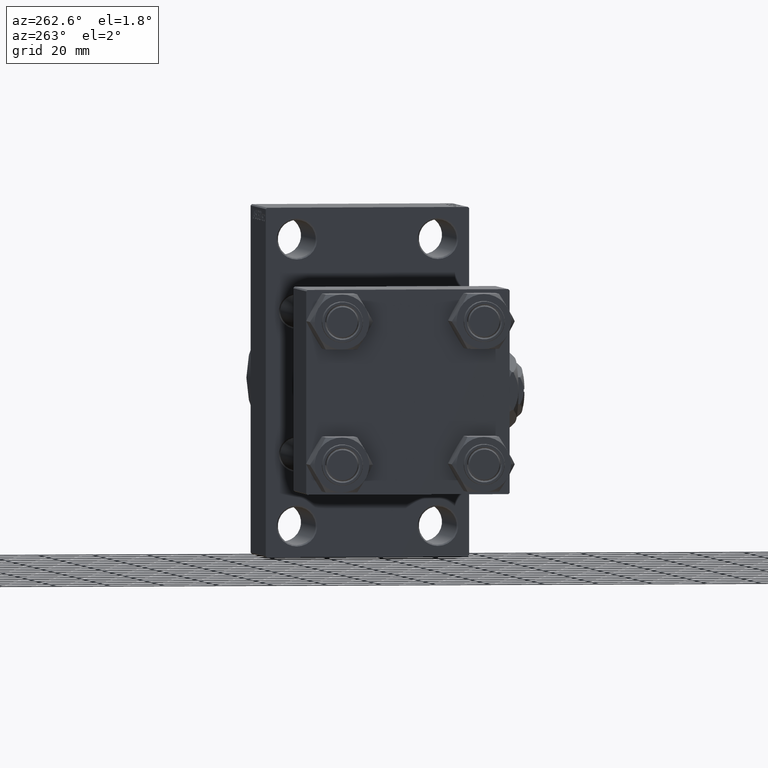
[diagram: clean part render]
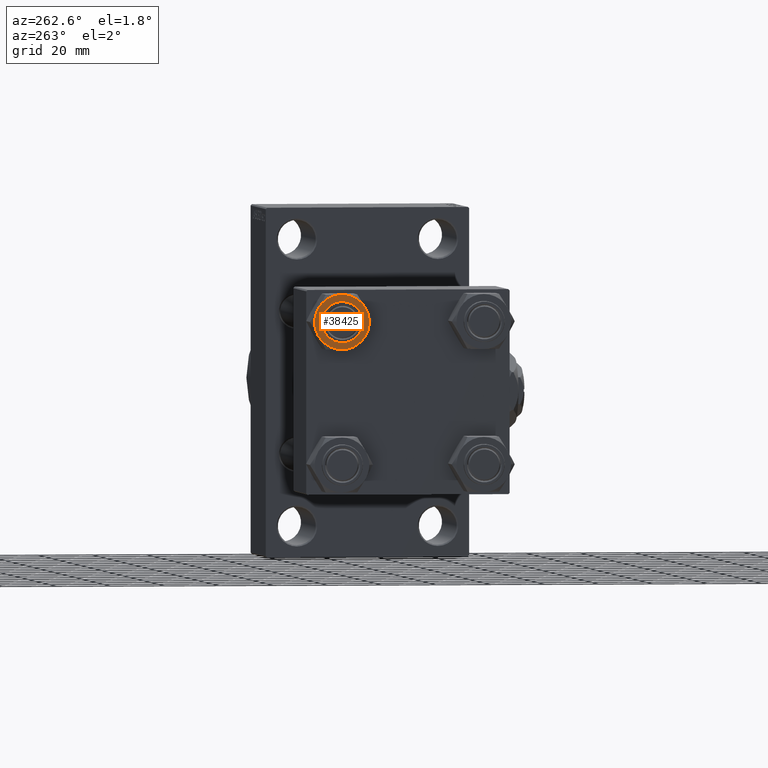
[diagram: same view with one face highlighted and labeled with its STEP entity id]
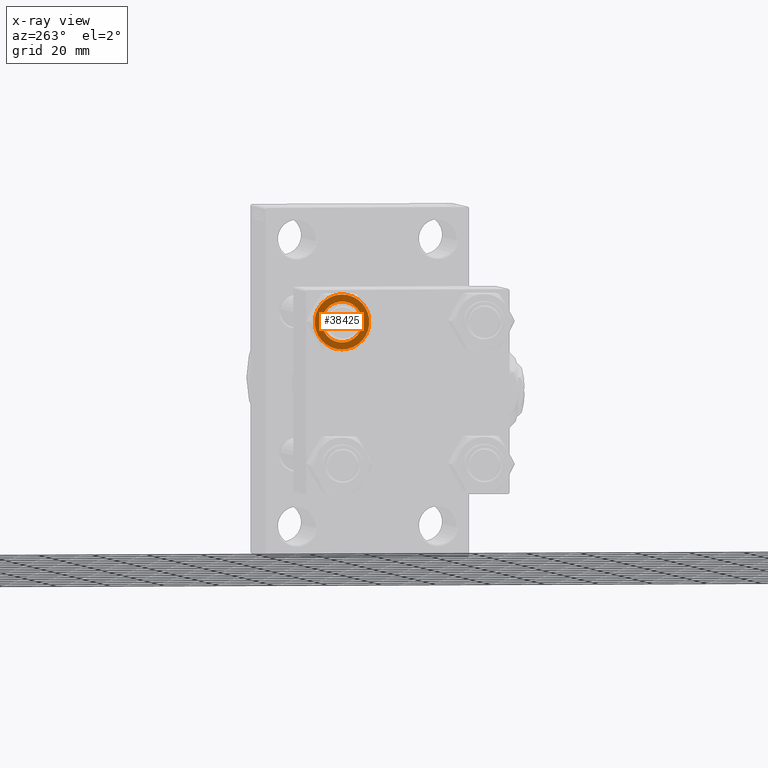
[diagram: x-ray of the same camera — body ghosted, the highlighted face saturated]
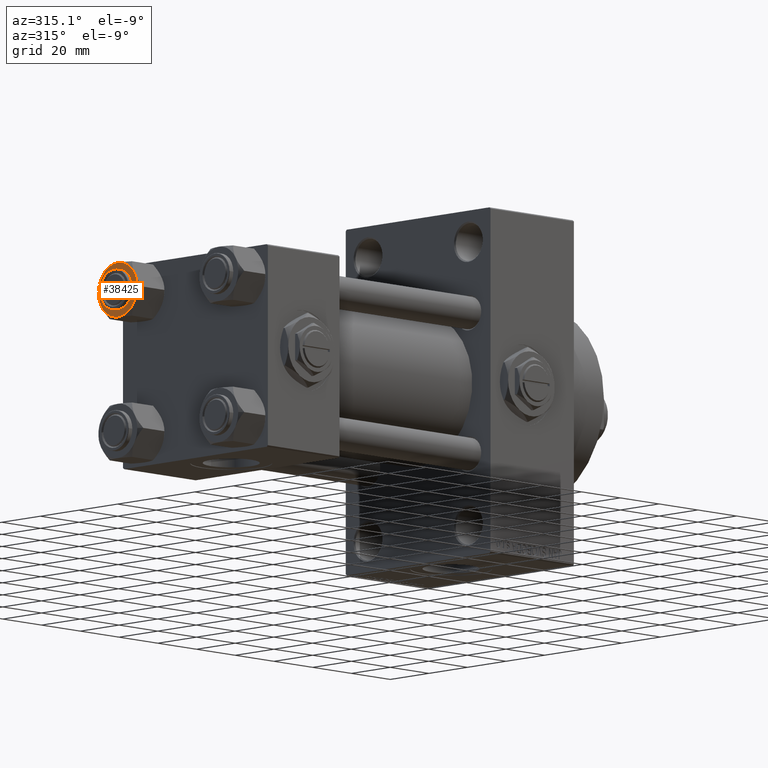
[diagram: same view with one face highlighted and labeled with its STEP entity id]
A machine part, auxiliary view. The second image highlights one B-rep face of the part: STEP entity #38425.
The next image is the same camera in x-ray: the body ghosted, the highlighted face saturated — about 0% of this face is hidden behind the body in this view.
A second angle (auxiliary view) of the same face is appended — the face is thin or edge-on in the first view.
In plain terms, the highlighted planar face has unit normal (1, 0, 0).
Its self-contained STEP definition (entity closure, byte-faithful):
#20 = CARTESIAN_POINT ( 'NONE',  ( 0.000000000000000000, 0.000000000000000000, 0.000000000000000000 ) ) ;
#1891 = CARTESIAN_POINT ( 'NONE',  ( 0.000000000000000000, 0.000000000000000000, 0.000000000000000000 ) ) ;
#2659 = DIRECTION ( 'NONE',  ( 0.000000000000000000, -0.000000000000000000, -1.000000000000000000 ) ) ;
#2833 = CARTESIAN_POINT ( 'NONE',  ( 0.000000000000000000, 0.000000000000000000, 0.000000000000000000 ) ) ;
#3242 = CARTESIAN_POINT ( 'NONE',  ( 1.502314598737159623E-15, -10.06321519197518199, 0.000000000000000000 ) ) ;
#3378 = EDGE_LOOP ( 'NONE', ( #33935, #36914, #49232, #39784, #11528, #34695, #16639 ) ) ;
#3384 = EDGE_CURVE ( 'NONE', #21511, #6785, #41482, .T. ) ;
#4410 = DIRECTION ( 'NONE',  ( -1.000000000000000000, 0.000000000000000000, -0.000000000000000000 ) ) ;
#4534 = CARTESIAN_POINT ( 'NONE',  ( 8.715000000000003411, -5.031607595987592774, 0.000000000000000000 ) ) ;
#4746 = VERTEX_POINT ( 'NONE', #3242 ) ;
#5828 = DIRECTION ( 'NONE',  ( 0.000000000000000000, -0.000000000000000000, -1.000000000000000000 ) ) ;
#5839 = CARTESIAN_POINT ( 'NONE',  ( -7.500000000000000000, 0.000000000000000000, 0.000000000000000000 ) ) ;
#6785 = VERTEX_POINT ( 'NONE', #25564 ) ;
#8621 = CARTESIAN_POINT ( 'NONE',  ( 8.715000000000005187, 5.031607595987590109, 0.000000000000000000 ) ) ;
#9631 = DIRECTION ( 'NONE',  ( -1.000000000000000000, 0.000000000000000000, 0.000000000000000000 ) ) ;
#9939 = DIRECTION ( 'NONE',  ( 1.000000000000000000, 0.000000000000000000, 0.000000000000000000 ) ) ;
#9974 = VERTEX_POINT ( 'NONE', #4534 ) ;
#9995 = CARTESIAN_POINT ( 'NONE',  ( 0.000000000000000000, 10.06321519197518022, 0.000000000000000000 ) ) ;
#10067 = AXIS2_PLACEMENT_3D ( 'NONE', #36834, #20452, #16844 ) ;
#11528 = ORIENTED_EDGE ( 'NONE', *, *, #11970, .F. ) ;
#11970 = EDGE_CURVE ( 'NONE', #6785, #9974, #36896, .T. ) ;
#12065 = CARTESIAN_POINT ( 'NONE',  ( 0.000000000000000000, 0.000000000000000000, 0.000000000000000000 ) ) ;
#12739 = DIRECTION ( 'NONE',  ( -1.000000000000000000, 0.000000000000000000, 0.000000000000000000 ) ) ;
#13187 = EDGE_CURVE ( 'NONE', #19194, #20062, #25338, .T. ) ;
#14287 = VERTEX_POINT ( 'NONE', #20640 ) ;
#14783 = AXIS2_PLACEMENT_3D ( 'NONE', #12065, #24108, #43593 ) ;
#15607 = AXIS2_PLACEMENT_3D ( 'NONE', #29099, #44734, #9631 ) ;
#16639 = ORIENTED_EDGE ( 'NONE', *, *, #26808, .T. ) ;
#16844 = DIRECTION ( 'NONE',  ( 1.000000000000000000, 0.000000000000000000, 0.000000000000000000 ) ) ;
#19194 = VERTEX_POINT ( 'NONE', #47105 ) ;
#19912 = EDGE_CURVE ( 'NONE', #36599, #19194, #25430, .T. ) ;
#20062 = VERTEX_POINT ( 'NONE', #9995 ) ;
#20442 = VERTEX_POINT ( 'NONE', #5839 ) ;
#20452 = DIRECTION ( 'NONE',  ( 0.000000000000000000, 0.000000000000000000, 1.000000000000000000 ) ) ;
#20640 = CARTESIAN_POINT ( 'NONE',  ( 7.500000000000000000, 9.184850993605147944E-16, 0.000000000000000000 ) ) ;
#20682 = CARTESIAN_POINT ( 'NONE',  ( 0.000000000000000000, 0.000000000000000000, 0.000000000000000000 ) ) ;
#21511 = VERTEX_POINT ( 'NONE', #8621 ) ;
#22684 = CARTESIAN_POINT ( 'NONE',  ( 0.000000000000000000, 0.000000000000000000, 0.000000000000000000 ) ) ;
#23581 = DIRECTION ( 'NONE',  ( 1.000000000000000000, 0.000000000000000000, 0.000000000000000000 ) ) ;
#24029 = AXIS2_PLACEMENT_3D ( 'NONE', #34920, #46704, #34425 ) ;
#24108 = DIRECTION ( 'NONE',  ( 0.000000000000000000, -0.000000000000000000, -1.000000000000000000 ) ) ;
#24120 = EDGE_CURVE ( 'NONE', #20442, #14287, #49342, .T. ) ;
#25022 = EDGE_CURVE ( 'NONE', #9974, #4746, #42048, .T. ) ;
#25270 = AXIS2_PLACEMENT_3D ( 'NONE', #20, #31275, #23581 ) ;
#25338 = CIRCLE ( 'NONE', #49076, 10.06321519197518199 ) ;
#25371 = CARTESIAN_POINT ( 'NONE',  ( -8.715000000000006963, -5.031607595987586556, 0.000000000000000000 ) ) ;
#25430 = CIRCLE ( 'NONE', #14783, 10.06321519197518199 ) ;
#25564 = CARTESIAN_POINT ( 'NONE',  ( 10.06321519197518199, 0.000000000000000000, 0.000000000000000000 ) ) ;
#25963 = DIRECTION ( 'NONE',  ( -1.000000000000000000, 0.000000000000000000, 0.000000000000000000 ) ) ;
#26808 = EDGE_CURVE ( 'NONE', #21511, #20062, #43680, .T. ) ;
#28958 = DIRECTION ( 'NONE',  ( -1.000000000000000000, 0.000000000000000000, 0.000000000000000000 ) ) ;
#29099 = CARTESIAN_POINT ( 'NONE',  ( 0.000000000000000000, 0.000000000000000000, 0.000000000000000000 ) ) ;
#30387 = PLANE ( 'NONE',  #39930 ) ;
#31275 = DIRECTION ( 'NONE',  ( 0.000000000000000000, 0.000000000000000000, 1.000000000000000000 ) ) ;
#33006 = CARTESIAN_POINT ( 'NONE',  ( 0.000000000000000000, 0.000000000000000000, 0.000000000000000000 ) ) ;
#33252 = DIRECTION ( 'NONE',  ( 0.000000000000000000, 0.000000000000000000, 1.000000000000000000 ) ) ;
#33935 = ORIENTED_EDGE ( 'NONE', *, *, #13187, .F. ) ;
#34234 = FACE_BOUND ( 'NONE', #44332, .T. ) ;
#34425 = DIRECTION ( 'NONE',  ( -1.000000000000000000, 0.000000000000000000, 0.000000000000000000 ) ) ;
#34695 = ORIENTED_EDGE ( 'NONE', *, *, #3384, .F. ) ;
#34920 = CARTESIAN_POINT ( 'NONE',  ( 0.000000000000000000, 0.000000000000000000, 0.000000000000000000 ) ) ;
#35910 = CIRCLE ( 'NONE', #25270, 7.500000000000000000 ) ;
#36599 = VERTEX_POINT ( 'NONE', #25371 ) ;
#36834 = CARTESIAN_POINT ( 'NONE',  ( 0.000000000000000000, 0.000000000000000000, 0.000000000000000000 ) ) ;
#36896 = CIRCLE ( 'NONE', #15607, 10.06321519197518199 ) ;
#36914 = ORIENTED_EDGE ( 'NONE', *, *, #19912, .F. ) ;
#38425 = ADVANCED_FACE ( 'NONE', ( #34234, #39505 ), #30387, .F. ) ;
#39418 = ORIENTED_EDGE ( 'NONE', *, *, #24120, .F. ) ;
#39505 = FACE_OUTER_BOUND ( 'NONE', #3378, .T. ) ;
#39784 = ORIENTED_EDGE ( 'NONE', *, *, #25022, .F. ) ;
#39818 = EDGE_CURVE ( 'NONE', #14287, #20442, #35910, .T. ) ;
#39930 = AXIS2_PLACEMENT_3D ( 'NONE', #22684, #50347, #4410 ) ;
#41482 = CIRCLE ( 'NONE', #50484, 10.06321519197518199 ) ;
#42048 = CIRCLE ( 'NONE', #24029, 10.06321519197518199 ) ;
#43593 = DIRECTION ( 'NONE',  ( -1.000000000000000000, 0.000000000000000000, 0.000000000000000000 ) ) ;
#43680 = CIRCLE ( 'NONE', #50231, 10.06321519197518199 ) ;
#44332 = EDGE_LOOP ( 'NONE', ( #39418, #50380 ) ) ;
#44734 = DIRECTION ( 'NONE',  ( 0.000000000000000000, -0.000000000000000000, -1.000000000000000000 ) ) ;
#45377 = EDGE_CURVE ( 'NONE', #4746, #36599, #49126, .T. ) ;
#46704 = DIRECTION ( 'NONE',  ( 0.000000000000000000, -0.000000000000000000, -1.000000000000000000 ) ) ;
#47105 = CARTESIAN_POINT ( 'NONE',  ( -8.715000000000003411, 5.031607595987592774, 0.000000000000000000 ) ) ;
#48287 = AXIS2_PLACEMENT_3D ( 'NONE', #1891, #2659, #25963 ) ;
#48689 = DIRECTION ( 'NONE',  ( 0.000000000000000000, -0.000000000000000000, -1.000000000000000000 ) ) ;
#49076 = AXIS2_PLACEMENT_3D ( 'NONE', #2833, #48689, #28958 ) ;
#49126 = CIRCLE ( 'NONE', #48287, 10.06321519197518199 ) ;
#49232 = ORIENTED_EDGE ( 'NONE', *, *, #45377, .F. ) ;
#49342 = CIRCLE ( 'NONE', #10067, 7.500000000000000000 ) ;
#50231 = AXIS2_PLACEMENT_3D ( 'NONE', #33006, #33252, #9939 ) ;
#50347 = DIRECTION ( 'NONE',  ( 0.000000000000000000, 0.000000000000000000, -1.000000000000000000 ) ) ;
#50380 = ORIENTED_EDGE ( 'NONE', *, *, #39818, .F. ) ;
#50484 = AXIS2_PLACEMENT_3D ( 'NONE', #20682, #5828, #12739 ) ;